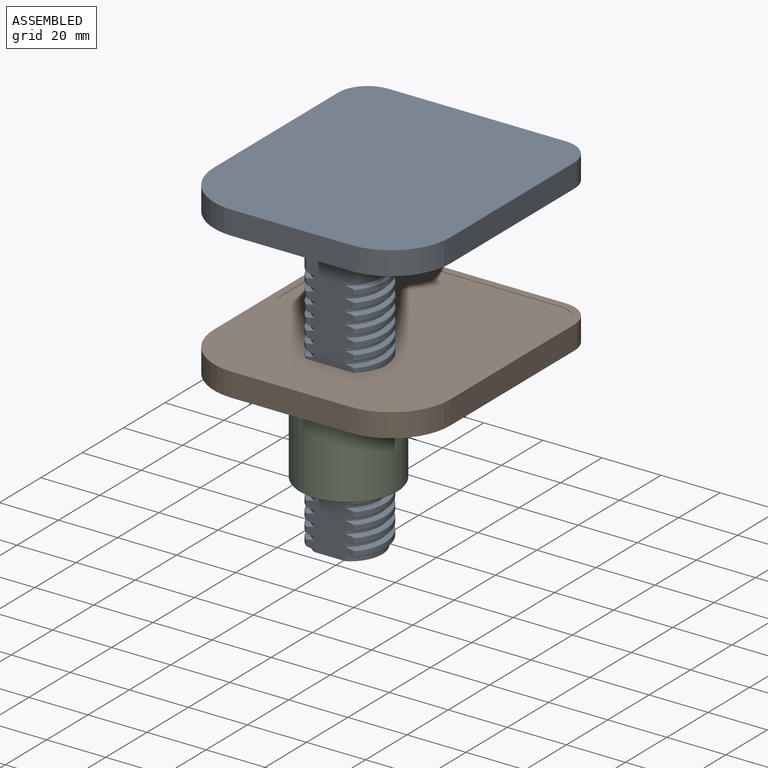
[diagram: assembled view]
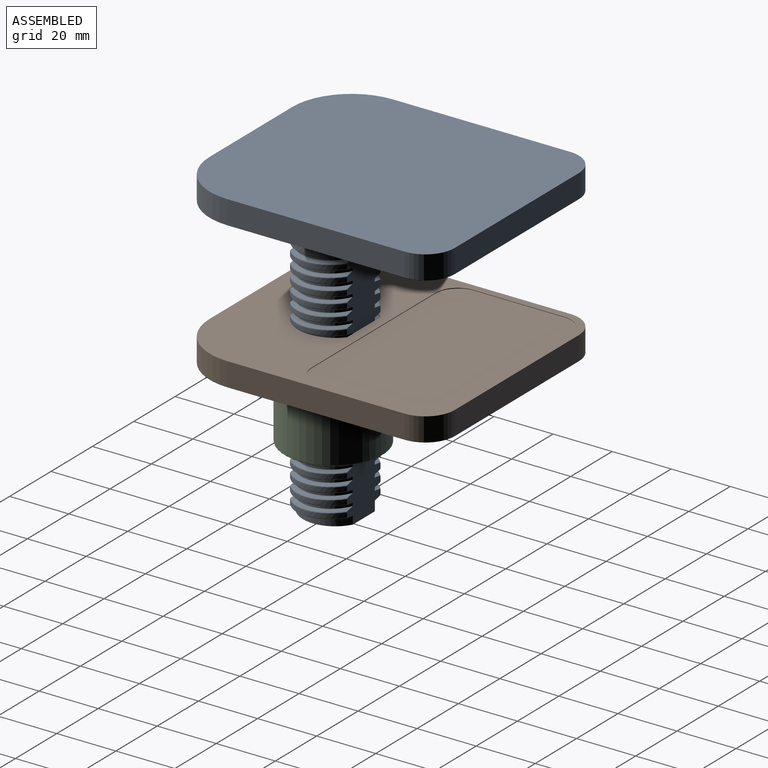
[diagram: assembled view, second angle]
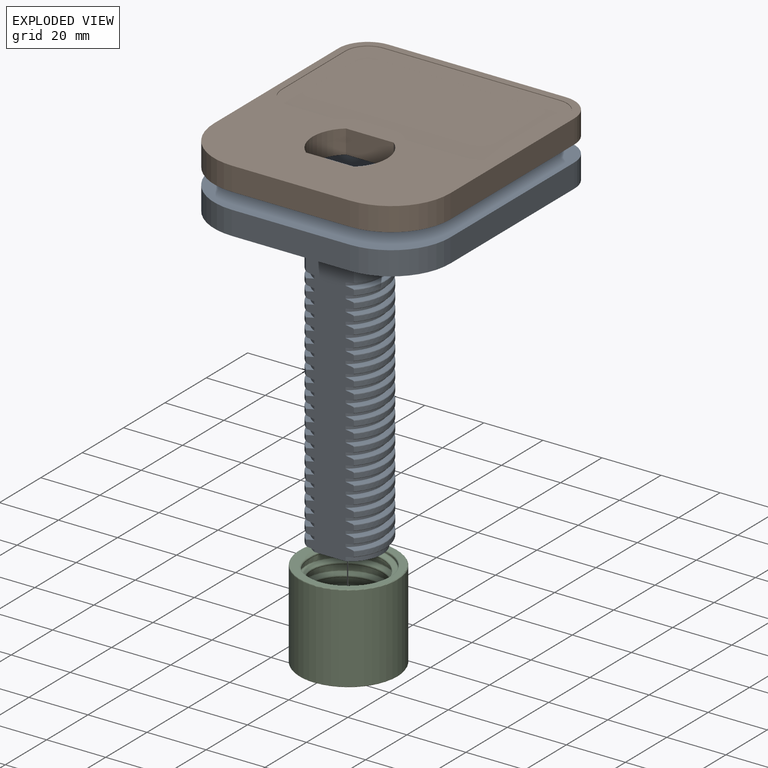
[diagram: exploded view]
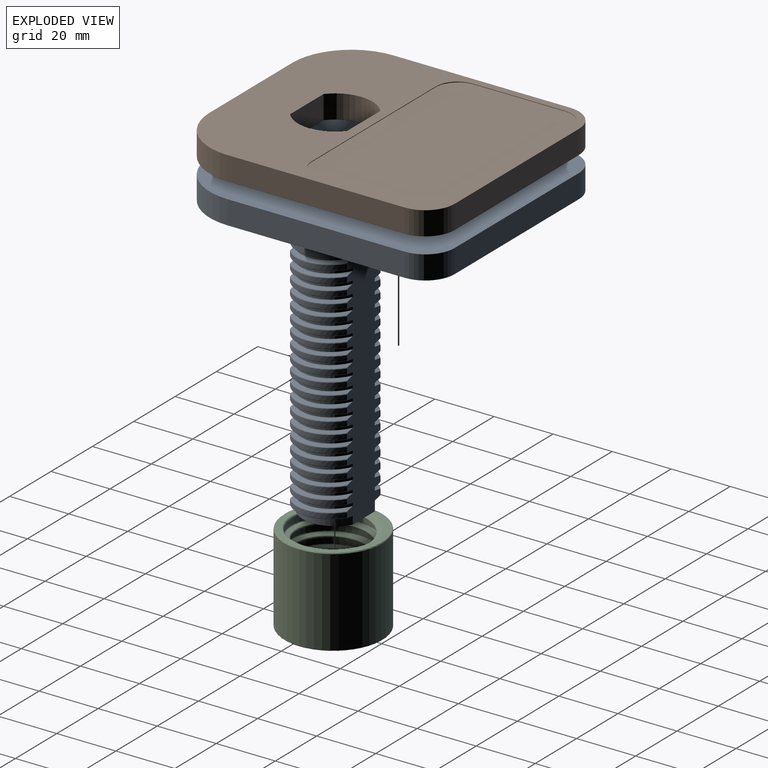
[diagram: exploded view, second angle]
ASSEMBLY  parts=3 mates=2
PART A: 287 faces, bbox 80.3x90.3x108.3 mm
  f0: cylinder r=11mm len=19.28mm, axis (0,0,-1), area 23.5mm2, adj f87,f129,f285,f286
  f1: cylinder r=11mm len=19.28mm, axis (0,0,-1), area 23.5mm2, adj f86,f128,f285,f286
  f2: cylinder r=11mm len=19.28mm, axis (0,0,-1), area 23.5mm2, adj f85,f127,f285,f286
  f3: cylinder r=11mm len=19.28mm, axis (0,0,-1), area 23.5mm2, adj f84,f126,f285,f286
  f4: cylinder r=11mm len=19.28mm, axis (0,0,-1), area 23.5mm2, adj f83,f125,f285,f286
  f5: cylinder r=11mm len=19.28mm, axis (0,0,-1), area 23.5mm2, adj f82,f124,f285,f286
  f6: cylinder r=11mm len=19.28mm, axis (0,0,-1), area 23.5mm2, adj f81,f123,f285,f286
  f7: cylinder r=11mm len=19.28mm, axis (0,0,-1), area 23.5mm2, adj f80,f122,f285,f286
  f8: cylinder r=11mm len=19.28mm, axis (0,0,-1), area 23.5mm2, adj f79,f121,f285,f286
  f9: cylinder r=11mm len=19.28mm, axis (0,0,-1), area 23.5mm2, adj f78,f120,f285,f286
  f10: cylinder r=11mm len=19.28mm, axis (0,0,-1), area 23.5mm2, adj f77,f119,f285,f286
  f11: cylinder r=11mm len=19.28mm, axis (0,0,-1), area 23.5mm2, adj f76,f118,f285,f286
  f12: cylinder r=11mm len=19.28mm, axis (0,0,-1), area 23.5mm2, adj f75,f117,f285,f286
  f13: cylinder r=11mm len=19.28mm, axis (0,0,-1), area 23.5mm2, adj f74,f116,f285,f286
  f14: cylinder r=11mm len=19.28mm, axis (0,0,-1), area 23.5mm2, adj f73,f115,f285,f286
  f15: cylinder r=11mm len=19.28mm, axis (0,0,-1), area 23.5mm2, adj f72,f114,f285,f286
  f16: cylinder r=11mm len=19.28mm, axis (0,0,-1), area 23.5mm2, adj f71,f113,f285,f286
  f17: cylinder r=11mm len=19.28mm, axis (0,0,-1), area 23.5mm2, adj f70,f112,f285,f286
  f18: cylinder r=11mm len=19.28mm, axis (0,0,-1), area 23.5mm2, adj f69,f111,f285,f286
  f19: cylinder r=11mm len=19.28mm, axis (0,0,-1), area 23.5mm2, adj f68,f110,f285,f286
  f20: cylinder r=11mm len=19.28mm, axis (0,0,-1), area 47mm2, adj f44,f67,f285,f286
  f21: cylinder r=11mm len=19.28mm, axis (0,0,-1), area 54.8mm2, adj f44,f45,f109,f274,f285,f286
  f22: cylinder r=11mm len=19.28mm, axis (0,0,-1), area 23.5mm2, adj f46,f89,f285,f286
  f23: cylinder r=11mm len=19.28mm, axis (0,0,-1), area 23.5mm2, adj f47,f90,f285,f286
  f24: cylinder r=11mm len=19.28mm, axis (0,0,-1), area 23.5mm2, adj f48,f91,f285,f286
  f25: cylinder r=11mm len=19.28mm, axis (0,0,-1), area 23.5mm2, adj f49,f92,f285,f286
  f26: cylinder r=11mm len=19.28mm, axis (0,0,-1), area 23.5mm2, adj f50,f93,f285,f286
  f27: cylinder r=11mm len=19.28mm, axis (0,0,-1), area 23.5mm2, adj f51,f94,f285,f286
  f28: cylinder r=11mm len=19.28mm, axis (0,0,-1), area 23.5mm2, adj f52,f95,f285,f286
  f29: cylinder r=11mm len=19.28mm, axis (0,0,-1), area 23.5mm2, adj f53,f96,f285,f286
  f30: cylinder r=11mm len=19.28mm, axis (0,0,-1), area 23.5mm2, adj f54,f97,f285,f286
  f31: cylinder r=11mm len=19.28mm, axis (0,0,-1), area 23.5mm2, adj f55,f98,f285,f286
  f32: cylinder r=11mm len=19.28mm, axis (0,0,-1), area 23.5mm2, adj f56,f99,f285,f286
  f33: cylinder r=11mm len=19.28mm, axis (0,0,-1), area 23.5mm2, adj f57,f100,f285,f286
  f34: cylinder r=11mm len=19.28mm, axis (0,0,-1), area 23.5mm2, adj f58,f101,f285,f286
  f35: cylinder r=11mm len=19.28mm, axis (0,0,-1), area 23.5mm2, adj f59,f102,f285,f286
  f36: cylinder r=11mm len=19.28mm, axis (0,0,-1), area 23.5mm2, adj f60,f103,f285,f286
  f37: cylinder r=11mm len=19.28mm, axis (0,0,-1), area 23.5mm2, adj f61,f104,f285,f286
  f38: cylinder r=11mm len=19.28mm, axis (0,0,-1), area 23.5mm2, adj f62,f105,f285,f286
  f39: cylinder r=11mm len=19.28mm, axis (0,0,-1), area 23.5mm2, adj f63,f106,f285,f286
  f40: cylinder r=11mm len=19.28mm, axis (0,0,-1), area 23.5mm2, adj f64,f107,f285,f286
  f41: cylinder r=11mm len=19.28mm, axis (0,0,-1), area 23.5mm2, adj f65,f108,f285,f286
  f42: cylinder r=11mm len=19.28mm, axis (0,0,-1), area 19.5mm2, adj f88,f130,f262,f285,f286
  f43: cylinder r=11mm len=9.64mm, axis (0,0,-1), area 4mm2, adj f44,f66,f285
  f44: plane 22x19.28mm, normal (0,0,1), area 360.7mm2, adj f20,f21,f43,f285,f286
  f45: bspline ~29.1x18.9mm, area 31.7mm2, adj f21,f218,f285,f286
  f46: bspline ~29.1x18.9mm, area 31.7mm2, adj f22,f219,f285,f286
  f47: bspline ~29.1x18.9mm, area 31.7mm2, adj f23,f220,f285,f286
  f48: bspline ~29.1x18.9mm, area 31.7mm2, adj f24,f221,f285,f286
  f49: bspline ~29.1x18.9mm, area 31.7mm2, adj f25,f222,f285,f286
  f50: bspline ~29.1x18.9mm, area 31.7mm2, adj f26,f223,f285,f286
  f51: bspline ~29.1x18.9mm, area 31.7mm2, adj f27,f224,f285,f286
  f52: bspline ~29.1x18.9mm, area 31.7mm2, adj f28,f225,f285,f286
  f53: bspline ~29.1x18.9mm, area 31.7mm2, adj f29,f226,f285,f286
  f54: bspline ~29.1x18.9mm, area 31.7mm2, adj f30,f227,f285,f286
  f55: bspline ~29.1x18.9mm, area 31.7mm2, adj f31,f228,f285,f286
  f56: bspline ~29.1x18.9mm, area 31.7mm2, adj f32,f229,f285,f286
  f57: bspline ~29.1x18.9mm, area 31.7mm2, adj f33,f230,f285,f286
  f58: bspline ~29.1x18.9mm, area 31.7mm2, adj f34,f231,f285,f286
  f59: bspline ~29.1x18.9mm, area 31.7mm2, adj f35,f232,f285,f286
  f60: bspline ~29.1x18.9mm, area 31.7mm2, adj f36,f233,f285,f286
  f61: bspline ~29.1x18.9mm, area 31.7mm2, adj f37,f234,f285,f286
  f62: bspline ~29.1x18.9mm, area 31.7mm2, adj f38,f235,f285,f286
  f63: bspline ~29.1x18.9mm, area 31.7mm2, adj f39,f236,f285,f286
  f64: bspline ~29.1x18.9mm, area 31.7mm2, adj f40,f237,f285,f286
  f65: bspline ~29.1x18.9mm, area 31.7mm2, adj f41,f238,f285,f286
  f66: bspline ~18.9x14.55mm, area 15.7mm2, adj f43,f239,f274,f275,f285
  f67: bspline ~29.1x18.9mm, area 31.7mm2, adj f20,f240,f285,f286
  f68: bspline ~29.1x18.9mm, area 31.7mm2, adj f19,f241,f285,f286
  f69: bspline ~29.1x18.9mm, area 31.7mm2, adj f18,f242,f285,f286
  f70: bspline ~29.1x18.9mm, area 31.7mm2, adj f17,f243,f285,f286
  f71: bspline ~29.1x18.9mm, area 31.7mm2, adj f16,f244,f285,f286
  f72: bspline ~29.1x18.9mm, area 31.7mm2, adj f15,f245,f285,f286
  f73: bspline ~29.1x18.9mm, area 31.7mm2, adj f14,f246,f285,f286
  f74: bspline ~29.1x18.9mm, area 31.7mm2, adj f13,f247,f285,f286
  f75: bspline ~29.1x18.9mm, area 31.7mm2, adj f12,f248,f285,f286
  f76: bspline ~29.1x18.9mm, area 31.7mm2, adj f11,f249,f285,f286
  f77: bspline ~29.1x18.9mm, area 31.7mm2, adj f10,f250,f285,f286
  f78: bspline ~29.1x18.9mm, area 31.7mm2, adj f9,f251,f285,f286
  f79: bspline ~29.1x18.9mm, area 31.7mm2, adj f8,f252,f285,f286
  f80: bspline ~29.1x18.9mm, area 31.7mm2, adj f7,f253,f285,f286
  f81: bspline ~29.1x18.9mm, area 31.7mm2, adj f6,f254,f285,f286
  f82: bspline ~29.1x18.9mm, area 31.7mm2, adj f5,f255,f285,f286
  f83: bspline ~29.1x18.9mm, area 31.7mm2, adj f4,f256,f285,f286
  f84: bspline ~29.1x18.9mm, area 31.7mm2, adj f3,f257,f285,f286
  f85: bspline ~29.1x18.9mm, area 31.7mm2, adj f2,f258,f285,f286
  f86: bspline ~29.1x18.9mm, area 31.7mm2, adj f1,f259,f285,f286
  f87: bspline ~29.1x18.9mm, area 31.7mm2, adj f0,f260,f285,f286
  f88: bspline ~18.9x14.55mm, area 10.6mm2, adj f42,f261,f262,f285
  f89: bspline ~29.1x18.9mm, area 31.7mm2, adj f22,f196,f285,f286
  f90: bspline ~29.1x18.9mm, area 31.7mm2, adj f23,f197,f285,f286
  f91: bspline ~29.1x18.9mm, area 31.7mm2, adj f24,f198,f285,f286
  f92: bspline ~29.1x18.9mm, area 31.7mm2, adj f25,f199,f285,f286
  f93: bspline ~29.1x18.9mm, area 31.7mm2, adj f26,f200,f285,f286
  f94: bspline ~29.1x18.9mm, area 31.7mm2, adj f27,f201,f285,f286
  f95: bspline ~29.1x18.9mm, area 31.7mm2, adj f28,f202,f285,f286
  f96: bspline ~29.1x18.9mm, area 31.7mm2, adj f29,f203,f285,f286
  f97: bspline ~29.1x18.9mm, area 31.7mm2, adj f30,f204,f285,f286
  f98: bspline ~29.1x18.9mm, area 31.7mm2, adj f31,f205,f285,f286
  f99: bspline ~29.1x18.9mm, area 31.7mm2, adj f32,f206,f285,f286
  f100: bspline ~29.1x18.9mm, area 31.7mm2, adj f33,f207,f285,f286
  f101: bspline ~29.1x18.9mm, area 31.7mm2, adj f34,f208,f285,f286
  f102: bspline ~29.1x18.9mm, area 31.7mm2, adj f35,f209,f285,f286
  f103: bspline ~29.1x18.9mm, area 31.7mm2, adj f36,f210,f285,f286
  f104: bspline ~29.1x18.9mm, area 31.7mm2, adj f37,f211,f285,f286
  f105: bspline ~29.1x18.9mm, area 31.7mm2, adj f38,f212,f285,f286
  f106: bspline ~29.1x18.9mm, area 31.7mm2, adj f39,f213,f285,f286
  f107: bspline ~29.1x18.9mm, area 31.7mm2, adj f40,f214,f285,f286
  f108: bspline ~29.1x18.9mm, area 31.7mm2, adj f41,f215,f285,f286
  f109: bspline ~18.9x14.55mm, area 15.7mm2, adj f21,f217,f274,f275,f285
  f110: bspline ~29.1x18.9mm, area 31.7mm2, adj f19,f175,f285,f286
  f111: bspline ~29.1x18.9mm, area 31.7mm2, adj f18,f176,f285,f286
  f112: bspline ~29.1x18.9mm, area 31.7mm2, adj f17,f177,f285,f286
  f113: bspline ~29.1x18.9mm, area 31.7mm2, adj f16,f178,f285,f286
  f114: bspline ~29.1x18.9mm, area 31.7mm2, adj f15,f179,f285,f286
  f115: bspline ~29.1x18.9mm, area 31.7mm2, adj f14,f180,f285,f286
  f116: bspline ~29.1x18.9mm, area 31.7mm2, adj f13,f181,f285,f286
  f117: bspline ~29.1x18.9mm, area 31.7mm2, adj f12,f182,f285,f286
  f118: bspline ~29.1x18.9mm, area 31.7mm2, adj f11,f183,f285,f286
  f119: bspline ~29.1x18.9mm, area 31.7mm2, adj f10,f184,f285,f286
  f120: bspline ~29.1x18.9mm, area 31.7mm2, adj f9,f185,f285,f286
  f121: bspline ~29.1x18.9mm, area 31.7mm2, adj f8,f186,f285,f286
  f122: bspline ~29.1x18.9mm, area 31.7mm2, adj f7,f187,f285,f286
  f123: bspline ~29.1x18.9mm, area 31.7mm2, adj f6,f188,f285,f286
  f124: bspline ~29.1x18.9mm, area 31.7mm2, adj f5,f189,f285,f286
  f125: bspline ~29.1x18.9mm, area 31.7mm2, adj f4,f190,f285,f286
  f126: bspline ~29.1x18.9mm, area 31.7mm2, adj f3,f191,f285,f286
  f127: bspline ~29.1x18.9mm, area 31.7mm2, adj f2,f192,f285,f286
  f128: bspline ~29.1x18.9mm, area 31.7mm2, adj f1,f193,f285,f286
  f129: bspline ~29.1x18.9mm, area 31.7mm2, adj f0,f194,f285,f286
  f130: bspline ~29.1x18.9mm, area 31.7mm2, adj f42,f195,f285,f286
  f131: cylinder r=12.6mm len=19.28mm, axis (0,0,-1), area 31mm2, adj f175,f240,f285,f286
  f132: cylinder r=12.6mm len=19.28mm, axis (0,0,-1), area 31mm2, adj f176,f241,f285,f286
  f133: cylinder r=12.6mm len=19.28mm, axis (0,0,-1), area 31mm2, adj f177,f242,f285,f286
  f134: cylinder r=12.6mm len=19.28mm, axis (0,0,-1), area 31mm2, adj f178,f243,f285,f286
  f135: cylinder r=12.6mm len=19.28mm, axis (0,0,-1), area 31mm2, adj f179,f244,f285,f286
  f136: cylinder r=12.6mm len=19.28mm, axis (0,0,-1), area 31mm2, adj f180,f245,f285,f286
  f137: cylinder r=12.6mm len=19.28mm, axis (0,0,-1), area 31mm2, adj f181,f246,f285,f286
  f138: cylinder r=12.6mm len=19.28mm, axis (0,0,-1), area 31mm2, adj f182,f247,f285,f286
  f139: cylinder r=12.6mm len=19.28mm, axis (0,0,-1), area 31mm2, adj f183,f248,f285,f286
  f140: cylinder r=12.6mm len=19.28mm, axis (0,0,-1), area 31mm2, adj f184,f249,f285,f286
  f141: cylinder r=12.6mm len=19.28mm, axis (0,0,-1), area 31mm2, adj f185,f250,f285,f286
  f142: cylinder r=12.6mm len=19.28mm, axis (0,0,-1), area 31mm2, adj f186,f251,f285,f286
  f143: cylinder r=12.6mm len=19.28mm, axis (0,0,-1), area 31mm2, adj f187,f252,f285,f286
  f144: cylinder r=12.6mm len=19.28mm, axis (0,0,-1), area 31mm2, adj f188,f253,f285,f286
  f145: cylinder r=12.6mm len=19.28mm, axis (0,0,-1), area 31mm2, adj f189,f254,f285,f286
  f146: cylinder r=12.6mm len=19.28mm, axis (0,0,-1), area 31mm2, adj f190,f255,f285,f286
  f147: cylinder r=12.6mm len=19.28mm, axis (0,0,-1), area 31mm2, adj f191,f256,f285,f286
  f148: cylinder r=12.6mm len=19.28mm, axis (0,0,-1), area 31mm2, adj f192,f257,f285,f286
  f149: cylinder r=12.6mm len=19.28mm, axis (0,0,-1), area 31mm2, adj f193,f258,f285,f286
  f150: cylinder r=12.6mm len=19.28mm, axis (0,0,-1), area 31mm2, adj f194,f259,f285,f286
  f151: cylinder r=12.6mm len=19.28mm, axis (0,0,-1), area 31mm2, adj f195,f260,f285,f286
  f152: cylinder r=12.6mm len=19.28mm, axis (0,0,-1), area 307.4mm2, adj f262,f264,f285,f286
  f153: cylinder r=12.6mm len=19.28mm, axis (0,0,-1), area 332.7mm2, adj f216,f238,f263,f264,f285,f286
  f154: cylinder r=12.6mm len=19.28mm, axis (0,0,-1), area 31mm2, adj f215,f237,f285,f286
  f155: cylinder r=12.6mm len=19.28mm, axis (0,0,-1), area 31mm2, adj f214,f236,f285,f286
  f156: cylinder r=12.6mm len=19.28mm, axis (0,0,-1), area 31mm2, adj f213,f235,f285,f286
  f157: cylinder r=12.6mm len=19.28mm, axis (0,0,-1), area 31mm2, adj f212,f234,f285,f286
  f158: cylinder r=12.6mm len=19.28mm, axis (0,0,-1), area 31mm2, adj f211,f233,f285,f286
  f159: cylinder r=12.6mm len=19.28mm, axis (0,0,-1), area 31mm2, adj f210,f232,f285,f286
  f160: cylinder r=12.6mm len=19.28mm, axis (0,0,-1), area 31mm2, adj f209,f231,f285,f286
  f161: cylinder r=12.6mm len=19.28mm, axis (0,0,-1), area 31mm2, adj f208,f230,f285,f286
  f162: cylinder r=12.6mm len=19.28mm, axis (0,0,-1), area 31mm2, adj f207,f229,f285,f286
  f163: cylinder r=12.6mm len=19.28mm, axis (0,0,-1), area 31mm2, adj f206,f228,f285,f286
  f164: cylinder r=12.6mm len=19.28mm, axis (0,0,-1), area 31mm2, adj f205,f227,f285,f286
  f165: cylinder r=12.6mm len=19.28mm, axis (0,0,-1), area 31mm2, adj f204,f226,f285,f286
  f166: cylinder r=12.6mm len=19.28mm, axis (0,0,-1), area 31mm2, adj f203,f225,f285,f286
  f167: cylinder r=12.6mm len=19.28mm, axis (0,0,-1), area 31mm2, adj f202,f224,f285,f286
  f168: cylinder r=12.6mm len=19.28mm, axis (0,0,-1), area 31mm2, adj f201,f223,f285,f286
  f169: cylinder r=12.6mm len=19.28mm, axis (0,0,-1), area 31mm2, adj f200,f222,f285,f286
  f170: cylinder r=12.6mm len=19.28mm, axis (0,0,-1), area 31mm2, adj f199,f221,f285,f286
  f171: cylinder r=12.6mm len=19.28mm, axis (0,0,-1), area 31mm2, adj f198,f220,f285,f286
  f172: cylinder r=12.6mm len=19.28mm, axis (0,0,-1), area 31mm2, adj f197,f219,f285,f286
  f173: cylinder r=12.6mm len=19.28mm, axis (0,0,-1), area 31mm2, adj f196,f218,f285,f286
  f174: cylinder r=12.6mm len=9.23mm, axis (0,0,-1), area 14.9mm2, adj f217,f239,f275,f285
  f175: bspline ~20.62x5.64mm, area 11.2mm2, adj f110,f131,f285,f286
  f176: bspline ~20.62x5.72mm, area 11.2mm2, adj f111,f132,f285,f286
  f177: bspline ~21.21x6.07mm, area 11.2mm2, adj f112,f133,f285,f286
  f178: bspline ~20.62x5.54mm, area 11.2mm2, adj f113,f134,f285,f286
  f179: bspline ~21.21x5.99mm, area 11.2mm2, adj f114,f135,f285,f286
  f180: bspline ~20.62x5.64mm, area 11.2mm2, adj f115,f136,f285,f286
  f181: bspline ~20.62x5.72mm, area 11.2mm2, adj f116,f137,f285,f286
  f182: bspline ~21.21x6.07mm, area 11.2mm2, adj f117,f138,f285,f286
  f183: bspline ~20.62x5.54mm, area 11.2mm2, adj f118,f139,f285,f286
  f184: bspline ~21.21x5.99mm, area 11.2mm2, adj f119,f140,f285,f286
  f185: bspline ~20.62x5.64mm, area 11.2mm2, adj f120,f141,f285,f286
  f186: bspline ~20.62x5.71mm, area 11.2mm2, adj f121,f142,f285,f286
  f187: bspline ~21.04x6.06mm, area 11.2mm2, adj f122,f143,f285,f286
  f188: bspline ~20.61x5.79mm, area 11.2mm2, adj f123,f144,f285,f286
  f189: bspline ~20.61x5.74mm, area 11.2mm2, adj f124,f145,f285,f286
  f190: bspline ~20.62x5.62mm, area 11.2mm2, adj f125,f146,f285,f286
  f191: bspline ~21.21x5.97mm, area 11.2mm2, adj f126,f147,f285,f286
  f192: bspline ~20.62x5.57mm, area 11.2mm2, adj f127,f148,f285,f286
  f193: bspline ~20.61x5.79mm, area 11.2mm2, adj f128,f149,f285,f286
  f194: bspline ~20.61x5.74mm, area 11.2mm2, adj f129,f150,f285,f286
  f195: bspline ~20.62x5.62mm, area 11.2mm2, adj f130,f151,f285,f286
  f196: bspline ~20.61x5.54mm, area 11.2mm2, adj f89,f173,f285,f286
  f197: bspline ~21.21x5.99mm, area 11.2mm2, adj f90,f172,f285,f286
  f198: bspline ~20.62x5.64mm, area 11.2mm2, adj f91,f171,f285,f286
  f199: bspline ~20.62x5.72mm, area 11.2mm2, adj f92,f170,f285,f286
  f200: bspline ~20.61x5.82mm, area 11.2mm2, adj f93,f169,f285,f286
  f201: bspline ~20.61x5.54mm, area 11.2mm2, adj f94,f168,f285,f286
  f202: bspline ~21.21x5.99mm, area 11.2mm2, adj f95,f167,f285,f286
  f203: bspline ~20.62x5.64mm, area 11.2mm2, adj f96,f166,f285,f286
  f204: bspline ~20.62x5.72mm, area 11.2mm2, adj f97,f165,f285,f286
  f205: bspline ~20.61x5.82mm, area 11.2mm2, adj f98,f164,f285,f286
  f206: bspline ~20.61x5.54mm, area 11.2mm2, adj f99,f163,f285,f286
  f207: bspline ~21.21x5.99mm, area 11.2mm2, adj f100,f162,f285,f286
  f208: bspline ~20.62x5.62mm, area 11.2mm2, adj f101,f161,f285,f286
  f209: bspline ~21.21x5.97mm, area 11.2mm2, adj f102,f160,f285,f286
  f210: bspline ~20.61x5.56mm, area 11.2mm2, adj f103,f159,f285,f286
  f211: bspline ~20.61x5.8mm, area 11.2mm2, adj f104,f158,f285,f286
  f212: bspline ~20.61x5.74mm, area 11.2mm2, adj f105,f157,f285,f286
  f213: bspline ~20.62x5.62mm, area 11.2mm2, adj f106,f156,f285,f286
  f214: bspline ~21.21x5.97mm, area 11.2mm2, adj f107,f155,f285,f286
  f215: bspline ~20.61x5.56mm, area 11.2mm2, adj f108,f154,f285,f286
  f216: bspline ~7.41x5.4mm, area 1.6mm2, adj f153,f263,f286
  f217: bspline ~10.59x5.81mm, area 5.5mm2, adj f109,f174,f275,f285
  f218: bspline ~21.21x5.96mm, area 11.2mm2, adj f45,f173,f285,f286
  f219: bspline ~20.62x5.62mm, area 11.2mm2, adj f46,f172,f285,f286
  f220: bspline ~20.61x5.74mm, area 11.2mm2, adj f47,f171,f285,f286
  f221: bspline ~20.61x5.8mm, area 11.2mm2, adj f48,f170,f285,f286
  f222: bspline ~20.61x5.56mm, area 11.2mm2, adj f49,f169,f285,f286
  f223: bspline ~21.21x5.97mm, area 11.2mm2, adj f50,f168,f285,f286
  f224: bspline ~20.62x5.62mm, area 11.2mm2, adj f51,f167,f285,f286
  f225: bspline ~20.61x5.74mm, area 11.2mm2, adj f52,f166,f285,f286
  f226: bspline ~20.61x5.8mm, area 11.2mm2, adj f53,f165,f285,f286
  f227: bspline ~20.61x5.56mm, area 11.2mm2, adj f54,f164,f285,f286
  f228: bspline ~21.21x5.97mm, area 11.2mm2, adj f55,f163,f285,f286
  f229: bspline ~20.62x5.62mm, area 11.2mm2, adj f56,f162,f285,f286
  f230: bspline ~21.21x5.99mm, area 11.2mm2, adj f57,f161,f285,f286
  f231: bspline ~20.61x5.54mm, area 11.2mm2, adj f58,f160,f285,f286
  f232: bspline ~20.61x5.82mm, area 11.2mm2, adj f59,f159,f285,f286
  f233: bspline ~20.61x5.72mm, area 11.2mm2, adj f60,f158,f285,f286
  f234: bspline ~20.62x5.64mm, area 11.2mm2, adj f61,f157,f285,f286
  f235: bspline ~21.21x5.99mm, area 11.2mm2, adj f62,f156,f285,f286
  f236: bspline ~20.61x5.54mm, area 11.2mm2, adj f63,f155,f285,f286
  f237: bspline ~20.61x5.81mm, area 11.2mm2, adj f64,f154,f285,f286
  f238: bspline ~20.61x5.72mm, area 11.2mm2, adj f65,f153,f285,f286
  f239: bspline ~11.54x5.44mm, area 5.5mm2, adj f66,f174,f275,f285
  f240: bspline ~20.61x5.74mm, area 11.2mm2, adj f67,f131,f285,f286
  f241: bspline ~20.61x5.79mm, area 11.2mm2, adj f68,f132,f285,f286
  f242: bspline ~20.62x5.57mm, area 11.2mm2, adj f69,f133,f285,f286
  f243: bspline ~21.21x5.97mm, area 11.2mm2, adj f70,f134,f285,f286
  f244: bspline ~20.62x5.62mm, area 11.2mm2, adj f71,f135,f285,f286
  f245: bspline ~20.61x5.74mm, area 11.2mm2, adj f72,f136,f285,f286
  f246: bspline ~20.61x5.79mm, area 11.2mm2, adj f73,f137,f285,f286
  f247: bspline ~20.62x5.57mm, area 11.2mm2, adj f74,f138,f285,f286
  f248: bspline ~21.21x5.97mm, area 11.2mm2, adj f75,f139,f285,f286
  f249: bspline ~20.62x5.62mm, area 11.2mm2, adj f76,f140,f285,f286
  f250: bspline ~20.61x5.74mm, area 11.2mm2, adj f77,f141,f285,f286
  f251: bspline ~20.61x5.79mm, area 11.2mm2, adj f78,f142,f285,f286
  f252: bspline ~21.04x6.06mm, area 11.2mm2, adj f79,f143,f285,f286
  f253: bspline ~20.62x5.72mm, area 11.2mm2, adj f80,f144,f285,f286
  f254: bspline ~20.62x5.64mm, area 11.2mm2, adj f81,f145,f285,f286
  f255: bspline ~21.21x5.99mm, area 11.2mm2, adj f82,f146,f285,f286
  f256: bspline ~20.62x5.55mm, area 11.2mm2, adj f83,f147,f285,f286
  f257: bspline ~21.21x6.07mm, area 11.2mm2, adj f84,f148,f285,f286
  f258: bspline ~20.62x5.72mm, area 11.2mm2, adj f85,f149,f285,f286
  f259: bspline ~20.62x5.64mm, area 11.2mm2, adj f86,f150,f285,f286
  f260: bspline ~21.21x5.99mm, area 11.2mm2, adj f87,f151,f285,f286
  f261: bspline ~3.75x3.55mm, area 0.4mm2, adj f88,f262,f285
  f262: plane 19.63x7.65mm, normal (0,0,1), area 25.9mm2, adj f42,f88,f152,f261,f285,f286
  f263: plane 5.66x4.3mm, normal (0,0,1), area 0.5mm2, adj f153,f216,f286
  f264: plane 90x80mm, normal (0,0,1), area 3151.9mm2, adj f152,f153,f265,f266,f267,f268,f269,f270
  f265: plane 60x8mm, normal (0,1,0), area 480mm2, adj f264,f266,f272,f273
  f266: cylinder r=10mm len=10mm, axis (0,0,1), area 125.7mm2, adj f264,f265,f267,f273
  f267: plane 60x8mm, normal (-1,0,0), area 480mm2, adj f264,f266,f268,f273
  f268: cylinder r=20mm len=20mm, axis (0,0,1), area 251.3mm2, adj f264,f267,f269,f273
  f269: plane 40x8mm, normal (0,-1,0), area 320mm2, adj f264,f268,f270,f273
  f270: cylinder r=20mm len=20mm, axis (0,0,1), area 251.3mm2, adj f264,f269,f271,f273
  f271: plane 60x8mm, normal (1,0,0), area 480mm2, adj f264,f270,f272,f273
  f272: cylinder r=10mm len=10mm, axis (0,0,1), area 125.7mm2, adj f264,f265,f271,f273
  f273: plane 90x80mm, normal (0,0,-1), area 6985.4mm2, adj f265,f266,f267,f268,f269,f270,f271,f272
  f274: plane 3x1.19mm, normal (0,1,0), area 3.1mm2, adj f21,f66,f109,f275
  f275: cylinder r=0.4mm len=2.25mm, axis (0,0,-1), area 1.2mm2, adj f66,f109,f174,f217,f239,f274
  f276: plane 59.8x0.2mm, normal (0,1,0), area 12mm2, adj f264,f277,f283,f284
  f277: cylinder r=7.6mm len=7.6mm, axis (0,0,1), area 2.4mm2, adj f264,f276,f278,f284
  f278: plane 30.8x0.2mm, normal (-1,0,0), area 6.2mm2, adj f264,f277,f279,f284
  f279: cylinder r=7.6mm len=7.6mm, axis (0,0,1), area 2.4mm2, adj f264,f278,f280,f284
  f280: plane 59.8x0.2mm, normal (0,-1,0), area 12mm2, adj f264,f279,f281,f284
  f281: cylinder r=7.6mm len=7.6mm, axis (0,0,1), area 2.4mm2, adj f264,f280,f282,f284
  f282: plane 30.8x0.2mm, normal (1,0,0), area 6.2mm2, adj f264,f281,f283,f284
  f283: cylinder r=7.6mm len=7.6mm, axis (0,0,1), area 2.4mm2, adj f264,f276,f282,f284
  f284: plane 75x46mm, normal (0,0,1), area 3400.4mm2, adj f276,f277,f278,f279,f280,f281,f282,f283
  f285: plane 100.16x16.38mm, normal (0,-1,0), area 1438.5mm2, adj f0,f1,f2,f3,f4,f5,f6,f7
  f286: plane 100.16x16.38mm, normal (0,1,0), area 1433.8mm2, adj f0,f1,f2,f3,f4,f5,f6,f7
PART B: 23 faces, bbox 80x90x8 mm
  f0: plane 90x80mm, normal (0,0,1), area 3151.9mm2, adj f2,f3,f4,f5,f6,f7,f8,f9
  f1: plane 90x80mm, normal (0,0,-1), area 6552.3mm2, adj f2,f3,f4,f5,f6,f7,f8,f9
  f2: plane 60x8mm, normal (0,1,0), area 480mm2, adj f0,f1,f3,f9
  f3: cylinder r=10mm len=10mm, axis (0,0,1), area 125.7mm2, adj f0,f1,f2,f4
  f4: plane 60x8mm, normal (-1,0,0), area 480mm2, adj f0,f1,f3,f5
  f5: cylinder r=20mm len=20mm, axis (0,0,1), area 251.3mm2, adj f0,f1,f4,f6
  f6: plane 40x8mm, normal (0,-1,0), area 320mm2, adj f0,f1,f5,f7
  f7: cylinder r=20mm len=20mm, axis (0,0,1), area 251.3mm2, adj f0,f1,f6,f8
  f8: plane 60x8mm, normal (1,0,0), area 480mm2, adj f0,f1,f7,f9
  f9: cylinder r=10mm len=10mm, axis (0,0,1), area 125.7mm2, adj f0,f1,f2,f8
  f10: plane 59.8x0.2mm, normal (0,1,0), area 12mm2, adj f0,f11,f17,f18
  f11: cylinder r=7.6mm len=7.6mm, axis (0,0,1), area 2.4mm2, adj f0,f10,f12,f18
  f12: plane 30.8x0.2mm, normal (-1,0,0), area 6.2mm2, adj f0,f11,f13,f18
  f13: cylinder r=7.6mm len=7.6mm, axis (0,0,1), area 2.4mm2, adj f0,f12,f14,f18
  f14: plane 59.8x0.2mm, normal (0,-1,0), area 12mm2, adj f0,f13,f15,f18
  f15: cylinder r=7.6mm len=7.6mm, axis (0,0,1), area 2.4mm2, adj f0,f14,f16,f18
  f16: plane 30.8x0.2mm, normal (1,0,0), area 6.2mm2, adj f0,f15,f17,f18
  f17: cylinder r=7.6mm len=7.6mm, axis (0,0,1), area 2.4mm2, adj f0,f10,f16,f18
  f18: plane 75x46mm, normal (0,0,1), area 3400.4mm2, adj f10,f11,f12,f13,f14,f15,f16,f17
  f19: plane 16.22x8mm, normal (0,1,0), area 129.8mm2, adj f0,f1,f20,f22
  f20: cylinder r=12.6mm len=19.28mm, axis (0,0,1), area 175.7mm2, adj f0,f1,f19,f21
  f21: plane 16.22x8mm, normal (0,-1,0), area 129.8mm2, adj f0,f1,f20,f22
  f22: cylinder r=12.6mm len=19.28mm, axis (0,0,1), area 175.7mm2, adj f0,f1,f19,f21
PART C: 25 faces, bbox 35.9x35.9x31.6 mm
  f0: cylinder r=16.6mm len=33.2mm, axis (0,0,1), area 3066.4mm2, adj f23,f24
  f1: plane 32.6x32.6mm, normal (0,0,-1), area 210mm2, adj f9,f10,f11,f12,f13,f24
  f2: plane 32.6x32.6mm, normal (0,0,1), area 209.9mm2, adj f14,f15,f16,f17,f18,f23
  f3: cylinder r=12mm len=28.98mm, axis (0,0,-1), area 116.3mm2, adj f19,f20,f21,f22
  f4: bspline ~31.87x30.5mm, area 775mm2, adj f8,f11,f13,f18,f20
  f5: bspline ~31.87x30.5mm, area 786mm2, adj f7,f11,f16,f18,f21
  f6: cylinder r=13.8mm len=29mm, axis (0,0,-1), area 1126.8mm2, adj f7,f8,f10,f15
  f7: bspline ~30.31x27.61mm, area 324.7mm2, adj f5,f6,f9,f14
  f8: bspline ~30.31x27.61mm, area 324.8mm2, adj f4,f6,f12,f17
  f9: bspline ~13.84x12.98mm, area 19.7mm2, adj f1,f7,f10,f11
  f10: torus R=14.3mm, axis (0,0,1), area 31mm2, adj f1,f6,f9,f12
  f11: bspline ~8.75x6.05mm, area 8.6mm2, adj f1,f4,f5,f9,f13,f20,f22
  f12: bspline ~18.22x5.74mm, area 9.8mm2, adj f1,f8,f10,f13
  f13: bspline ~7.93x3.61mm, area 0.7mm2, adj f1,f4,f11,f12
  f14: bspline ~13.83x12.83mm, area 9.8mm2, adj f2,f7,f15,f16
  f15: torus R=14.3mm, axis (0,0,1), area 30.9mm2, adj f2,f6,f14,f17
  f16: bspline ~8.45x2.05mm, area 0.7mm2, adj f2,f5,f14,f18
  f17: bspline ~18.53x7.47mm, area 19.8mm2, adj f2,f8,f15,f18
  f18: bspline ~9.05x5.37mm, area 8.5mm2, adj f2,f4,f5,f16,f17,f19,f21
  f19: bspline ~1.45x0.66mm, area 0.2mm2, adj f3,f18,f20,f21
  f20: bspline ~29.24x24.45mm, area 213.5mm2, adj f3,f4,f11,f19,f22
  f21: bspline ~29.24x24.45mm, area 213.4mm2, adj f3,f5,f18,f19,f22
  f22: bspline ~1.48x0.69mm, area 0.2mm2, adj f3,f11,f20,f21
  f23: torus R=16.3mm, axis (0,0,1), area 48.8mm2, adj f0,f2
  f24: torus R=16.3mm, axis (0,0,1), area 48.8mm2, adj f0,f1
PLACE A rot(axis=(0,-1,0),180deg) t=(-57.53,66.03,-7.81)mm
PLACE B t=(-57.53,66.03,-49.4)mm
PLACE C t=(-57.53,65.38,-152.01)mm
MATE slider A.f0 <-> B.f20  axis (0,0,-1) through (-57.53,66.03,-7.81)mm
MATE cylindrical C.f0 <-> A.f264  axis (0,0,1) through (-57.53,65.38,-86.71)mm
